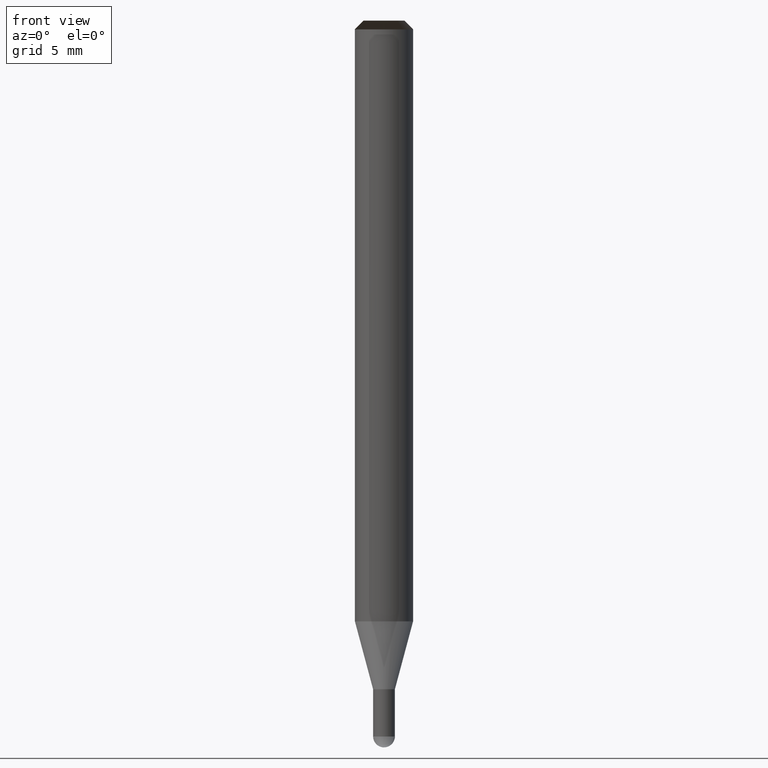
[diagram: clean part render]
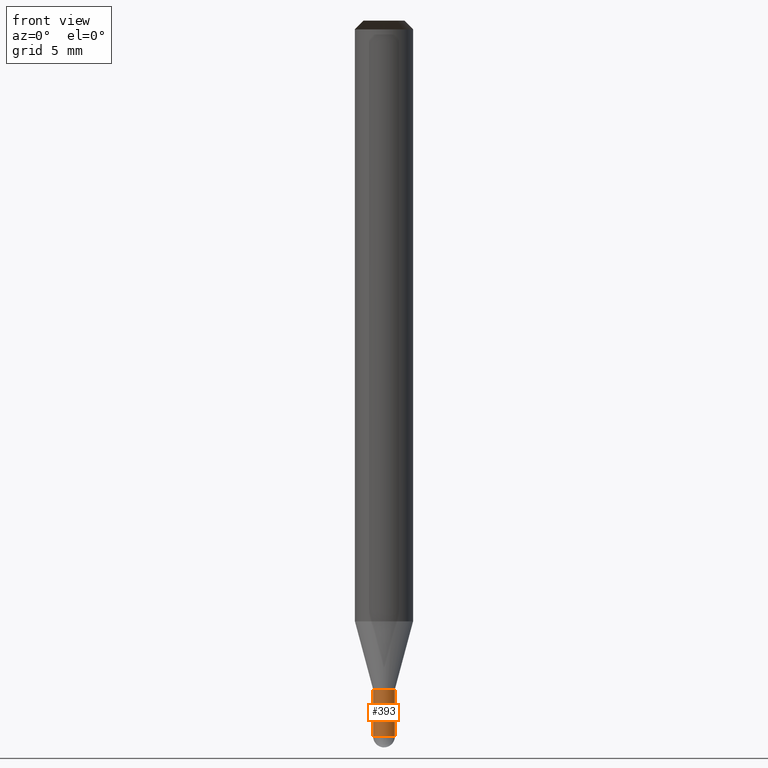
[diagram: same view with one face highlighted and labeled with its STEP entity id]
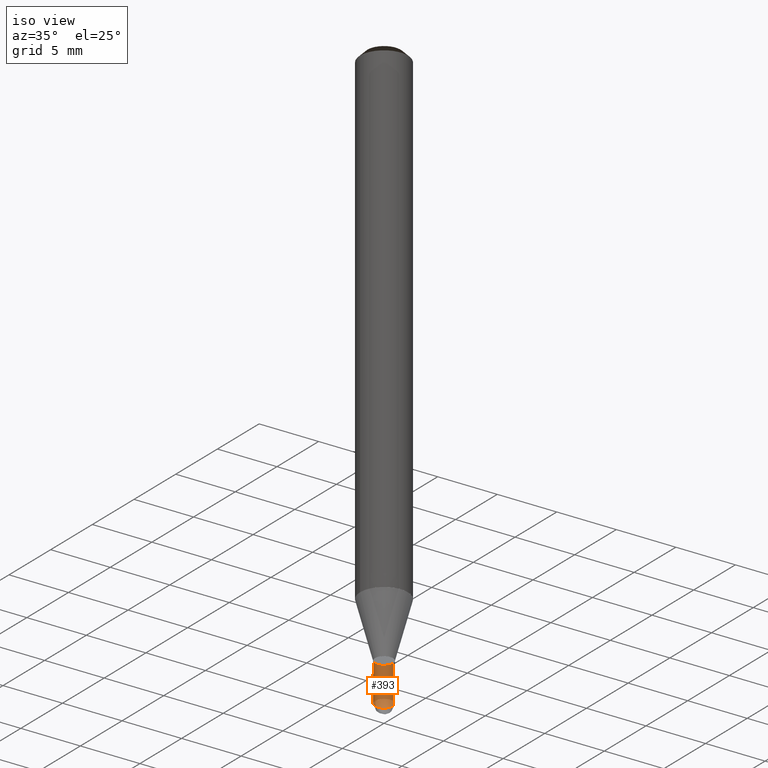
[diagram: same view with one face highlighted and labeled with its STEP entity id]
A machine part, front view. The second image highlights one B-rep face of the part: STEP entity #393.
A second angle (iso view) of the same face is appended — the face is thin or edge-on in the first view.
In plain terms, the highlighted face is a freeform B-spline surface patch.
Its self-contained STEP definition (entity closure, byte-faithful):
#248=CARTESIAN_POINT('',(0.75,0.0,-7.916));
#252=CARTESIAN_POINT('',(-0.75,0.0,-7.916));
#253=CARTESIAN_POINT('',(0.75,0.0,-4.666));
#257=CARTESIAN_POINT('',(-0.75,0.0,-4.666));
#262=CARTESIAN_POINT('',(-0.75,-0.75,-7.916));
#263=CARTESIAN_POINT('',(0.0,-0.75,-7.916));
#264=CARTESIAN_POINT('',(0.75,-0.75,-7.916));
#265=CARTESIAN_POINT('',(-0.75,-0.75,-4.666));
#266=CARTESIAN_POINT('',(0.0,-0.75,-4.666));
#267=CARTESIAN_POINT('',(0.75,-0.75,-4.666));
#374=(
BOUNDED_SURFACE()
B_SPLINE_SURFACE(1,2,(
(#252,#262,#263,#264,#248),
(#257,#265,#266,#267,#253)
), .UNSPECIFIED.,.F.,.F.,.F.)
B_SPLINE_SURFACE_WITH_KNOTS((2,2),(3,2,3),(
0.0,1.0),(
0.0,0.5,1.0), .UNSPECIFIED.)
GEOMETRIC_REPRESENTATION_ITEM()
RATIONAL_B_SPLINE_SURFACE(((1.0,0.707106781187,1.0,0.707106781187,1.0),
(1.0,0.707106781187,1.0,0.707106781187,1.0)
))
REPRESENTATION_ITEM('')
SURFACE()
);
#375=(
BOUNDED_CURVE()
B_SPLINE_CURVE(1,(#257,#252),.UNSPECIFIED.,.F.,.F.)
B_SPLINE_CURVE_WITH_KNOTS((2,2),
(0.0,1.0),.UNSPECIFIED.)
CURVE()
GEOMETRIC_REPRESENTATION_ITEM()
RATIONAL_B_SPLINE_CURVE((1.0,1.0))
REPRESENTATION_ITEM('')
);
#376=(
BOUNDED_CURVE()
B_SPLINE_CURVE(2,(#252,#262,#263,#264,#248),.UNSPECIFIED.,.F.,.F.)
B_SPLINE_CURVE_WITH_KNOTS((3,2,3),
(0.0,0.5,1.0),.UNSPECIFIED.)
CURVE()
GEOMETRIC_REPRESENTATION_ITEM()
RATIONAL_B_SPLINE_CURVE((1.0,0.707106781187,1.0,0.707106781187,1.0))
REPRESENTATION_ITEM('')
);
#377=(
BOUNDED_CURVE()
B_SPLINE_CURVE(1,(#248,#253),.UNSPECIFIED.,.F.,.F.)
B_SPLINE_CURVE_WITH_KNOTS((2,2),
(0.0,1.0),.UNSPECIFIED.)
CURVE()
GEOMETRIC_REPRESENTATION_ITEM()
RATIONAL_B_SPLINE_CURVE((1.0,1.0))
REPRESENTATION_ITEM('')
);
#378=(
BOUNDED_CURVE()
B_SPLINE_CURVE(2,(#253,#267,#266,#265,#257),.UNSPECIFIED.,.F.,.F.)
B_SPLINE_CURVE_WITH_KNOTS((3,2,3),
(0.0,0.5,1.0),.UNSPECIFIED.)
CURVE()
GEOMETRIC_REPRESENTATION_ITEM()
RATIONAL_B_SPLINE_CURVE((1.0,0.707106781187,1.0,0.707106781187,1.0))
REPRESENTATION_ITEM('')
);
#379=VERTEX_POINT('',#248);
#380=VERTEX_POINT('',#252);
#381=VERTEX_POINT('',#253);
#382=VERTEX_POINT('',#257);
#383=EDGE_CURVE('',#382,#380,#375,.T.);
#384=EDGE_CURVE('',#380,#379,#376,.T.);
#385=EDGE_CURVE('',#379,#381,#377,.T.);
#386=EDGE_CURVE('',#381,#382,#378,.T.);
#387=ORIENTED_EDGE('',*,*,#383,.T.);
#388=ORIENTED_EDGE('',*,*,#384,.T.);
#389=ORIENTED_EDGE('',*,*,#385,.T.);
#390=ORIENTED_EDGE('',*,*,#386,.T.);
#391=EDGE_LOOP('',(#387,#388,#389,#390));
#392=FACE_OUTER_BOUND('',#391,.T.);
#393=ADVANCED_FACE('',(#392),#374,.T.);